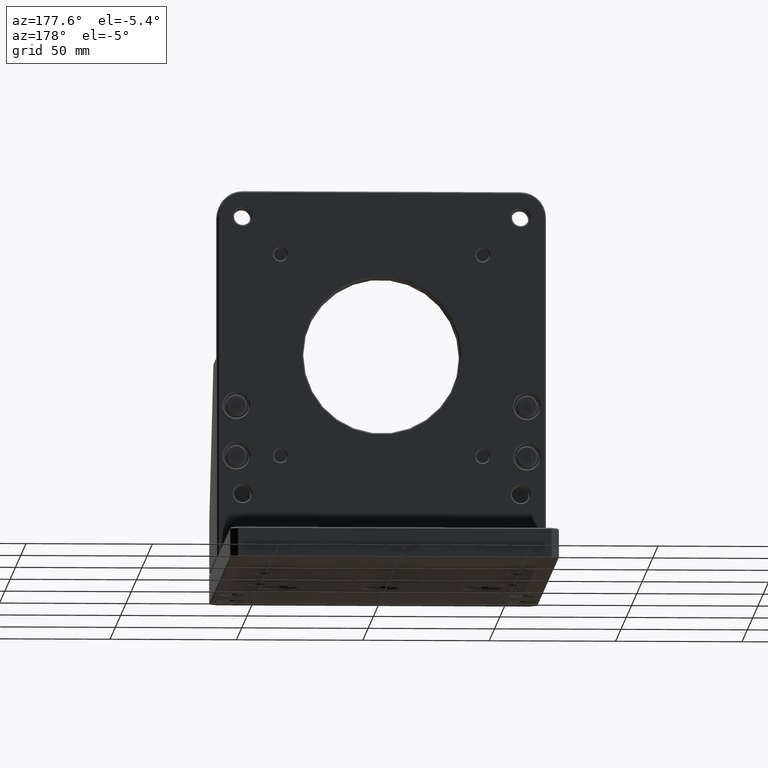
[diagram: clean part render]
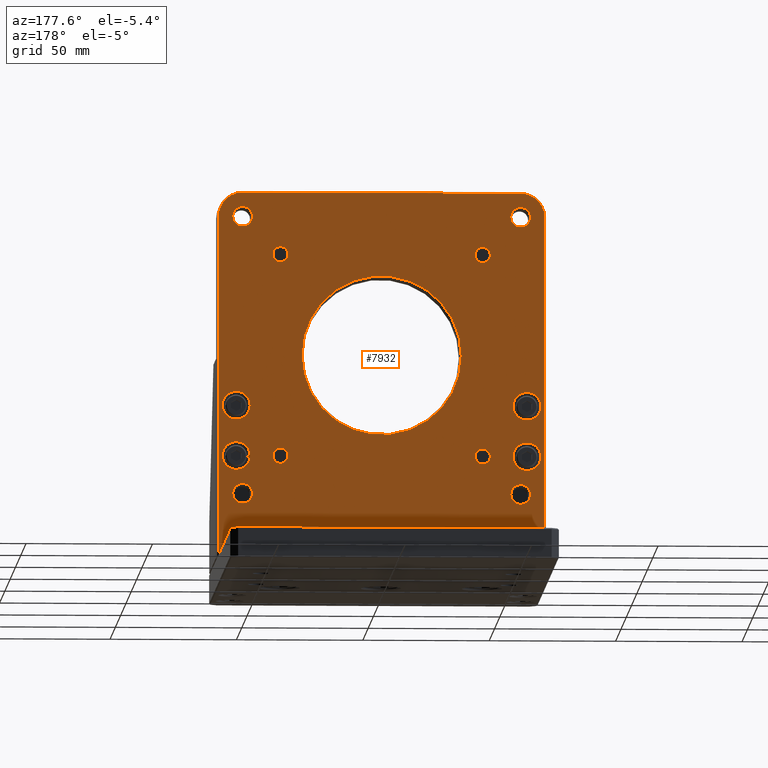
[diagram: same view with one face highlighted and labeled with its STEP entity id]
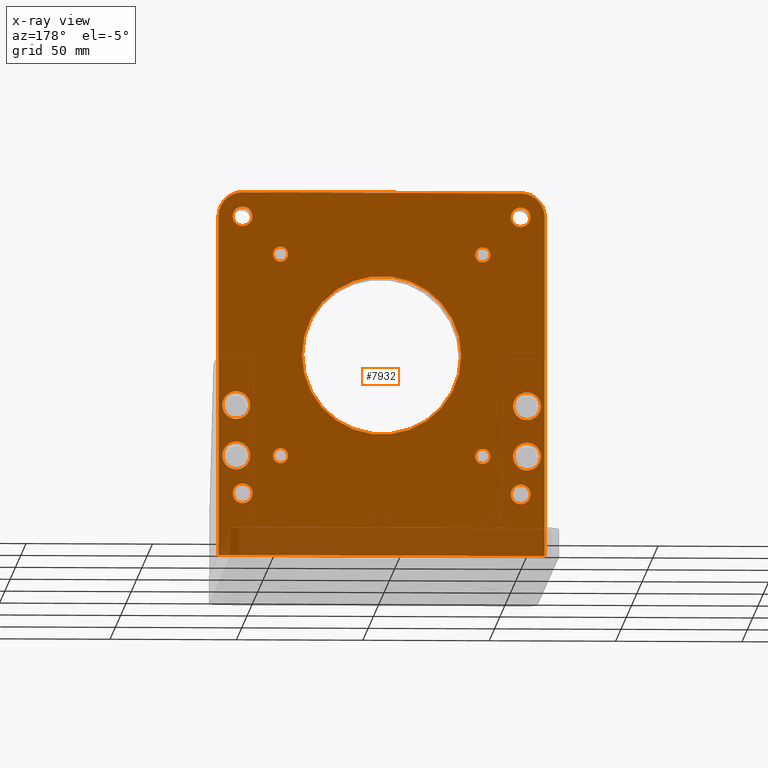
[diagram: x-ray of the same camera — body ghosted, the highlighted face saturated]
A machine part, auxiliary view. The second image highlights one B-rep face of the part: STEP entity #7932.
The next image is the same camera in x-ray: the body ghosted, the highlighted face saturated — about 10% of this face is hidden behind the body in this view.
In plain terms, the highlighted planar face has unit normal (0, -1, 0).
Its self-contained STEP definition (entity closure, byte-faithful):
#73 = CARTESIAN_POINT ( 'NONE',  ( 64.49999999999808153, -22.49999999999902656, 147.0000000000009663 ) ) ;
#112 = ORIENTED_EDGE ( 'NONE', *, *, #4727, .T. ) ;
#117 = AXIS2_PLACEMENT_3D ( 'NONE', #7075, #3770, #5889 ) ;
#195 = DIRECTION ( 'NONE',  ( 1.000000000000000000, 6.982962677686266711E-15, 1.396592535537253342E-14 ) ) ;
#214 = DIRECTION ( 'NONE',  ( 1.000000000000000000, 6.938893903907158169E-15, 1.850371707708575512E-14 ) ) ;
#282 = DIRECTION ( 'NONE',  ( 6.982962677686217801E-15, -1.000000000000000000, 3.491481338843133355E-15 ) ) ;
#303 = EDGE_CURVE ( 'NONE', #1775, #11291, #4821, .T. ) ;
#314 = EDGE_CURVE ( 'NONE', #11262, #3816, #12248, .T. ) ;
#417 = DIRECTION ( 'NONE',  ( 1.000000000000000000, 6.938893903907196034E-15, 1.513940488125206321E-14 ) ) ;
#496 = EDGE_CURVE ( 'NONE', #10457, #10890, #4851, .T. ) ;
#591 = EDGE_LOOP ( 'NONE', ( #8537, #4252 ) ) ;
#647 = EDGE_CURVE ( 'NONE', #11291, #1775, #4628, .T. ) ;
#704 = ORIENTED_EDGE ( 'NONE', *, *, #3540, .T. ) ;
#752 = AXIS2_PLACEMENT_3D ( 'NONE', #2916, #2048, #8092 ) ;
#789 = CIRCLE ( 'NONE', #8221, 3.000000000000030198 ) ;
#793 = CARTESIAN_POINT ( 'NONE',  ( -57.50000000000056133, -22.50000000000021316, 51.99999999999927525 ) ) ;
#919 = FACE_BOUND ( 'NONE', #9052, .T. ) ;
#985 = FACE_BOUND ( 'NONE', #591, .T. ) ;
#1004 = DIRECTION ( 'NONE',  ( 6.982962677686217801E-15, -1.000000000000000000, 3.491481338843133355E-15 ) ) ;
#1009 = CIRCLE ( 'NONE', #8429, 9.499999999999973355 ) ;
#1042 = CARTESIAN_POINT ( 'NONE',  ( -57.50000000000084555, -22.50000000000014566, 71.99999999999927525 ) ) ;
#1194 = AXIS2_PLACEMENT_3D ( 'NONE', #10086, #11865, #8035 ) ;
#1243 = AXIS2_PLACEMENT_3D ( 'NONE', #7020, #8022, #5017 ) ;
#1247 = DIRECTION ( 'NONE',  ( 1.000000000000000000, 6.938893903907196034E-15, 1.513940488125206321E-14 ) ) ;
#1270 = CARTESIAN_POINT ( 'NONE',  ( 39.99999999999830891, -22.49999999999925038, 132.0000000000006537 ) ) ;
#1390 = EDGE_LOOP ( 'NONE', ( #9519, #4080 ) ) ;
#1412 = CARTESIAN_POINT ( 'NONE',  ( -57.50000000000084555, -22.50000000000014566, 71.99999999999927525 ) ) ;
#1486 = DIRECTION ( 'NONE',  ( 6.982962677686217801E-15, -1.000000000000000000, 3.491481338843133355E-15 ) ) ;
#1568 = AXIS2_PLACEMENT_3D ( 'NONE', #7326, #7517, #2224 ) ;
#1674 = CARTESIAN_POINT ( 'NONE',  ( -1.499960357288447578E-14, -22.49999999999995026, 12.50000000000010836 ) ) ;
#1734 = LINE ( 'NONE', #5771, #8217 ) ;
#1775 = VERTEX_POINT ( 'NONE', #10365 ) ;
#1800 = VERTEX_POINT ( 'NONE', #11236 ) ;
#1991 = FACE_BOUND ( 'NONE', #7986, .T. ) ;
#2004 = DIRECTION ( 'NONE',  ( 6.982962677686217801E-15, -1.000000000000000000, 3.491481338843133355E-15 ) ) ;
#2040 = CARTESIAN_POINT ( 'NONE',  ( -64.49999999999998579, -22.50000000000040146, 12.49999999999920597 ) ) ;
#2048 = DIRECTION ( 'NONE',  ( 6.982962677686217801E-15, -1.000000000000000000, 3.491481338843133355E-15 ) ) ;
#2086 = EDGE_LOOP ( 'NONE', ( #2643, #12632 ) ) ;
#2093 = AXIS2_PLACEMENT_3D ( 'NONE', #793, #6827, #10750 ) ;
#2129 = FACE_BOUND ( 'NONE', #11177, .T. ) ;
#2134 = AXIS2_PLACEMENT_3D ( 'NONE', #11664, #7545, #10669 ) ;
#2170 = ORIENTED_EDGE ( 'NONE', *, *, #11747, .T. ) ;
#2187 = FACE_BOUND ( 'NONE', #11298, .T. ) ;
#2224 = DIRECTION ( 'NONE',  ( 1.000000000000000000, 6.938893903907242577E-15, 1.168655815394904071E-14 ) ) ;
#2247 = ORIENTED_EDGE ( 'NONE', *, *, #4398, .T. ) ;
#2251 = CARTESIAN_POINT ( 'NONE',  ( -58.90000000000031122, -22.50000000000027711, 36.99999999999926104 ) ) ;
#2254 = CIRCLE ( 'NONE', #6069, 5.500000000000032863 ) ;
#2321 = DIRECTION ( 'NONE',  ( 6.982962677686217801E-15, -1.000000000000000000, 3.491481338843133355E-15 ) ) ;
#2397 = VERTEX_POINT ( 'NONE', #8939 ) ;
#2408 = DIRECTION ( 'NONE',  ( 1.000000000000000000, 6.938893903907158169E-15, 1.387778780781431634E-14 ) ) ;
#2430 = CARTESIAN_POINT ( 'NONE',  ( -52.00000000000054001, -22.50000000000017764, 51.99999999999935341 ) ) ;
#2467 = EDGE_CURVE ( 'NONE', #7661, #2478, #4320, .T. ) ;
#2478 = VERTEX_POINT ( 'NONE', #8807 ) ;
#2490 = CARTESIAN_POINT ( 'NONE',  ( 39.99999999999941735, -22.49999999999953104, 52.00000000000063949 ) ) ;
#2498 = CIRCLE ( 'NONE', #8644, 5.500000000000025757 ) ;
#2507 = CIRCLE ( 'NONE', #13100, 3.000000000000030198 ) ;
#2551 = ORIENTED_EDGE ( 'NONE', *, *, #3105, .T. ) ;
#2589 = VERTEX_POINT ( 'NONE', #9069 ) ;
#2643 = ORIENTED_EDGE ( 'NONE', *, *, #3210, .T. ) ;
#2657 = AXIS2_PLACEMENT_3D ( 'NONE', #3581, #10409, #7624 ) ;
#2730 = EDGE_CURVE ( 'NONE', #8522, #8853, #2498, .T. ) ;
#2782 = ORIENTED_EDGE ( 'NONE', *, *, #11511, .T. ) ;
#2916 = CARTESIAN_POINT ( 'NONE',  ( 54.99999999999966604, -22.49999999999947775, 37.00000000000083844 ) ) ;
#2935 = AXIS2_PLACEMENT_3D ( 'NONE', #8574, #10635, #11485 ) ;
#3003 = CARTESIAN_POINT ( 'NONE',  ( -64.50000000000186162, -22.49999999999992895, 146.9999999999991473 ) ) ;
#3044 = EDGE_CURVE ( 'NONE', #1800, #11332, #789, .T. ) ;
#3105 = EDGE_CURVE ( 'NONE', #4202, #3131, #1009, .T. ) ;
#3117 = DIRECTION ( 'NONE',  ( 1.000000000000000000, 7.116814260417693756E-15, 1.423362852083538751E-14 ) ) ;
#3131 = VERTEX_POINT ( 'NONE', #3399 ) ;
#3177 = AXIS2_PLACEMENT_3D ( 'NONE', #7112, #7422, #3444 ) ;
#3189 = FACE_BOUND ( 'NONE', #3993, .T. ) ;
#3210 = EDGE_CURVE ( 'NONE', #6026, #6484, #4826, .T. ) ;
#3227 = ORIENTED_EDGE ( 'NONE', *, *, #303, .T. ) ;
#3236 = ORIENTED_EDGE ( 'NONE', *, *, #7162, .T. ) ;
#3242 = CARTESIAN_POINT ( 'NONE',  ( -1.020546229159708305E-12, -22.49999999999969802, 84.50000000000008527 ) ) ;
#3293 = CIRCLE ( 'NONE', #5192, 3.899999999999987033 ) ;
#3335 = DIRECTION ( 'NONE',  ( 6.982962677686217801E-15, -1.000000000000000000, 3.491481338843133355E-15 ) ) ;
#3362 = CIRCLE ( 'NONE', #8029, 5.500000000000032863 ) ;
#3369 = DIRECTION ( 'NONE',  ( 6.982962677686217801E-15, -1.000000000000000000, 3.491481338843133355E-15 ) ) ;
#3399 = CARTESIAN_POINT ( 'NONE',  ( -55.00000000000201794, -22.49999999999982947, 156.4999999999992895 ) ) ;
#3414 = CARTESIAN_POINT ( 'NONE',  ( 57.49999999999942446, -22.49999999999941025, 52.00000000000088818 ) ) ;
#3431 = LINE ( 'NONE', #7469, #7125 ) ;
#3444 = DIRECTION ( 'NONE',  ( 1.000000000000000000, 7.116814260417643269E-15, 1.423362852083528654E-14 ) ) ;
#3446 = EDGE_CURVE ( 'NONE', #7135, #9733, #12250, .T. ) ;
#3540 = EDGE_CURVE ( 'NONE', #4431, #5932, #7562, .T. ) ;
#3581 = CARTESIAN_POINT ( 'NONE',  ( -55.00000000000032685, -22.50000000000024869, 36.99999999999931788 ) ) ;
#3593 = DIRECTION ( 'NONE',  ( 1.000000000000000000, 6.938893903907158169E-15, 1.850371707708575512E-14 ) ) ;
#3715 = CIRCLE ( 'NONE', #11139, 5.500000000000025757 ) ;
#3719 = ORIENTED_EDGE ( 'NONE', *, *, #6405, .T. ) ;
#3770 = DIRECTION ( 'NONE',  ( 6.982962677686217801E-15, -1.000000000000000000, 3.491481338843133355E-15 ) ) ;
#3794 = DIRECTION ( 'NONE',  ( 1.000000000000000000, 6.938893903907158169E-15, 1.850371707708575512E-14 ) ) ;
#3816 = VERTEX_POINT ( 'NONE', #5487 ) ;
#3833 = DIRECTION ( 'NONE',  ( 6.982962677686217801E-15, -1.000000000000000000, 3.491481338843133355E-15 ) ) ;
#3856 = ORIENTED_EDGE ( 'NONE', *, *, #2730, .T. ) ;
#3926 = CIRCLE ( 'NONE', #12609, 3.000000000000030198 ) ;
#3968 = DIRECTION ( 'NONE',  ( 1.000000000000000000, 6.938893903907158169E-15, 1.387778780781431634E-14 ) ) ;
#3993 = EDGE_LOOP ( 'NONE', ( #8204, #9197 ) ) ;
#4037 = CARTESIAN_POINT ( 'NONE',  ( 54.99999999999813838, -22.49999999999909761, 147.0000000000008527 ) ) ;
#4046 = PLANE ( 'NONE',  #12284 ) ;
#4048 = EDGE_CURVE ( 'NONE', #8993, #10457, #1734, .T. ) ;
#4080 = ORIENTED_EDGE ( 'NONE', *, *, #10637, .T. ) ;
#4184 = VERTEX_POINT ( 'NONE', #11093 ) ;
#4202 = VERTEX_POINT ( 'NONE', #3003 ) ;
#4223 = ORIENTED_EDGE ( 'NONE', *, *, #9331, .T. ) ;
#4252 = ORIENTED_EDGE ( 'NONE', *, *, #5865, .T. ) ;
#4320 = CIRCLE ( 'NONE', #7082, 31.50000000000000000 ) ;
#4325 = EDGE_LOOP ( 'NONE', ( #2247, #5242 ) ) ;
#4363 = CARTESIAN_POINT ( 'NONE',  ( 54.99999999999966604, -22.49999999999947775, 37.00000000000083844 ) ) ;
#4398 = EDGE_CURVE ( 'NONE', #3816, #11262, #2507, .T. ) ;
#4420 = AXIS2_PLACEMENT_3D ( 'NONE', #8291, #9280, #1247 ) ;
#4431 = VERTEX_POINT ( 'NONE', #8631 ) ;
#4484 = CARTESIAN_POINT ( 'NONE',  ( 51.09999999999968168, -22.49999999999950617, 37.00000000000078160 ) ) ;
#4556 = CIRCLE ( 'NONE', #1194, 31.50000000000000000 ) ;
#4566 = EDGE_CURVE ( 'NONE', #6484, #6026, #3362, .T. ) ;
#4567 = CARTESIAN_POINT ( 'NONE',  ( -37.00000000000054712, -22.50000000000006750, 51.99999999999955946 ) ) ;
#4628 = CIRCLE ( 'NONE', #5901, 3.000000000000030198 ) ;
#4727 = EDGE_CURVE ( 'NONE', #7518, #4912, #12259, .T. ) ;
#4750 = DIRECTION ( 'NONE',  ( 1.000000000000000000, 6.938893903907228378E-15, 1.409807015397024218E-14 ) ) ;
#4817 = AXIS2_PLACEMENT_3D ( 'NONE', #2490, #5468, #7515 ) ;
#4821 = CIRCLE ( 'NONE', #11205, 3.000000000000030198 ) ;
#4826 = CIRCLE ( 'NONE', #2093, 5.500000000000032863 ) ;
#4851 = LINE ( 'NONE', #1674, #8856 ) ;
#4912 = VERTEX_POINT ( 'NONE', #7541 ) ;
#4967 = FACE_BOUND ( 'NONE', #9063, .T. ) ;
#4985 = CIRCLE ( 'NONE', #2657, 3.899999999999979927 ) ;
#5017 = DIRECTION ( 'NONE',  ( 1.000000000000000000, 7.116814260417706378E-15, 1.423362852083541276E-14 ) ) ;
#5033 = FACE_BOUND ( 'NONE', #7054, .T. ) ;
#5192 = AXIS2_PLACEMENT_3D ( 'NONE', #4363, #2321, #3117 ) ;
#5231 = DIRECTION ( 'NONE',  ( 6.982962677686217801E-15, -1.000000000000000000, 3.491481338843133355E-15 ) ) ;
#5242 = ORIENTED_EDGE ( 'NONE', *, *, #314, .T. ) ;
#5314 = EDGE_LOOP ( 'NONE', ( #3227, #11937 ) ) ;
#5468 = DIRECTION ( 'NONE',  ( 6.982962677686217801E-15, -1.000000000000000000, 3.491481338843133355E-15 ) ) ;
#5487 = CARTESIAN_POINT ( 'NONE',  ( -43.00000000000172662, -22.49999999999983302, 131.9999999999994884 ) ) ;
#5516 = CARTESIAN_POINT ( 'NONE',  ( -55.00000000000189004, -22.49999999999986500, 146.9999999999992895 ) ) ;
#5771 = CARTESIAN_POINT ( 'NONE',  ( 64.49999999999896261, -22.49999999999924682, 84.50000000000099476 ) ) ;
#5865 = EDGE_CURVE ( 'NONE', #2478, #7661, #4556, .T. ) ;
#5889 = DIRECTION ( 'NONE',  ( 1.000000000000000000, 6.938893903907186568E-15, 1.387778780781437314E-14 ) ) ;
#5901 = AXIS2_PLACEMENT_3D ( 'NONE', #5978, #2004, #10226 ) ;
#5932 = VERTEX_POINT ( 'NONE', #11145 ) ;
#5938 = CARTESIAN_POINT ( 'NONE',  ( 51.99999999999913314, -22.49999999999937828, 72.00000000000079581 ) ) ;
#5965 = EDGE_CURVE ( 'NONE', #7522, #8375, #3293, .T. ) ;
#5973 = FACE_BOUND ( 'NONE', #4325, .T. ) ;
#5978 = CARTESIAN_POINT ( 'NONE',  ( -40.00000000000057554, -22.50000000000008882, 51.99999999999951683 ) ) ;
#6026 = VERTEX_POINT ( 'NONE', #12205 ) ;
#6045 = ORIENTED_EDGE ( 'NONE', *, *, #8218, .T. ) ;
#6065 = VERTEX_POINT ( 'NONE', #2251 ) ;
#6069 = AXIS2_PLACEMENT_3D ( 'NONE', #3414, #282, #12497 ) ;
#6187 = EDGE_LOOP ( 'NONE', ( #10663, #11179, #2170, #2551, #4223, #7345 ) ) ;
#6203 = ORIENTED_EDGE ( 'NONE', *, *, #8066, .T. ) ;
#6242 = EDGE_CURVE ( 'NONE', #2397, #4184, #13050, .T. ) ;
#6354 = VERTEX_POINT ( 'NONE', #11322 ) ;
#6385 = CARTESIAN_POINT ( 'NONE',  ( -40.00000000000057554, -22.50000000000008882, 51.99999999999951683 ) ) ;
#6405 = EDGE_CURVE ( 'NONE', #8853, #8522, #3715, .T. ) ;
#6484 = VERTEX_POINT ( 'NONE', #2430 ) ;
#6547 = AXIS2_PLACEMENT_3D ( 'NONE', #11985, #12263, #3968 ) ;
#6638 = DIRECTION ( 'NONE',  ( 1.000000000000000000, 6.982962677686266711E-15, 1.396592535537253342E-14 ) ) ;
#6652 = CIRCLE ( 'NONE', #1568, 9.499999999999980460 ) ;
#6827 = DIRECTION ( 'NONE',  ( 6.982962677686217801E-15, -1.000000000000000000, 3.491481338843133355E-15 ) ) ;
#6848 = ORIENTED_EDGE ( 'NONE', *, *, #8803, .T. ) ;
#6860 = CARTESIAN_POINT ( 'NONE',  ( 58.89999999999965041, -22.49999999999944933, 37.00000000000089528 ) ) ;
#6884 = VERTEX_POINT ( 'NONE', #7386 ) ;
#6923 = VECTOR ( 'NONE', #6638, 1000.000000000000000 ) ;
#7020 = CARTESIAN_POINT ( 'NONE',  ( -55.00000000000032685, -22.50000000000024869, 36.99999999999931788 ) ) ;
#7054 = EDGE_LOOP ( 'NONE', ( #7596, #6848 ) ) ;
#7075 = CARTESIAN_POINT ( 'NONE',  ( 57.49999999999942446, -22.49999999999941025, 52.00000000000088818 ) ) ;
#7080 = DIRECTION ( 'NONE',  ( 6.982962677686217801E-15, -1.000000000000000000, 3.491481338843133355E-15 ) ) ;
#7082 = AXIS2_PLACEMENT_3D ( 'NONE', #10667, #3833, #4750 ) ;
#7112 = CARTESIAN_POINT ( 'NONE',  ( -55.00000000000186162, -22.49999999999986500, 146.9999999999993179 ) ) ;
#7125 = VECTOR ( 'NONE', #11513, 1000.000000000000000 ) ;
#7135 = VERTEX_POINT ( 'NONE', #7482 ) ;
#7162 = EDGE_CURVE ( 'NONE', #5932, #4431, #11646, .T. ) ;
#7229 = FACE_BOUND ( 'NONE', #5314, .T. ) ;
#7326 = CARTESIAN_POINT ( 'NONE',  ( 54.99999999999810285, -22.49999999999909761, 147.0000000000008242 ) ) ;
#7345 = ORIENTED_EDGE ( 'NONE', *, *, #12117, .T. ) ;
#7355 = CARTESIAN_POINT ( 'NONE',  ( -37.00000000000166267, -22.49999999999979039, 131.9999999999996021 ) ) ;
#7359 = EDGE_LOOP ( 'NONE', ( #112, #7788 ) ) ;
#7386 = CARTESIAN_POINT ( 'NONE',  ( 42.99999999999944578, -22.49999999999950973, 52.00000000000067502 ) ) ;
#7422 = DIRECTION ( 'NONE',  ( 6.982962677686217801E-15, -1.000000000000000000, 3.491481338843133355E-15 ) ) ;
#7469 = CARTESIAN_POINT ( 'NONE',  ( -64.50000000000098055, -22.50000000000014921, 84.49999999999918998 ) ) ;
#7482 = CARTESIAN_POINT ( 'NONE',  ( 51.09999999999812559, -22.49999999999912603, 147.0000000000007958 ) ) ;
#7484 = CARTESIAN_POINT ( 'NONE',  ( 42.99999999999833733, -22.49999999999922906, 132.0000000000007105 ) ) ;
#7515 = DIRECTION ( 'NONE',  ( 1.000000000000000000, 6.938893903907158169E-15, 1.387778780781431634E-14 ) ) ;
#7517 = DIRECTION ( 'NONE',  ( -6.982962677686217801E-15, 1.000000000000000000, -3.491481338843133355E-15 ) ) ;
#7518 = VERTEX_POINT ( 'NONE', #5938 ) ;
#7522 = VERTEX_POINT ( 'NONE', #6860 ) ;
#7541 = CARTESIAN_POINT ( 'NONE',  ( 62.99999999999918288, -22.49999999999930012, 72.00000000000095213 ) ) ;
#7545 = DIRECTION ( 'NONE',  ( 6.982962677686217801E-15, -1.000000000000000000, 3.491481338843133355E-15 ) ) ;
#7562 = CIRCLE ( 'NONE', #8409, 3.900000000000014566 ) ;
#7596 = ORIENTED_EDGE ( 'NONE', *, *, #6242, .T. ) ;
#7624 = DIRECTION ( 'NONE',  ( 1.000000000000000000, 7.116814260417706378E-15, 1.423362852083541276E-14 ) ) ;
#7641 = LINE ( 'NONE', #10753, #6923 ) ;
#7661 = VERTEX_POINT ( 'NONE', #12494 ) ;
#7788 = ORIENTED_EDGE ( 'NONE', *, *, #12973, .T. ) ;
#7813 = DIRECTION ( 'NONE',  ( 1.000000000000000000, 7.116814260417643269E-15, 1.423362852083528654E-14 ) ) ;
#7932 = ADVANCED_FACE ( 'NONE', ( #13140, #4967, #985, #12206, #919, #1991, #3189, #5973, #2129, #7229, #11278, #2187, #5033, #12139 ), #4046, .F. ) ;
#7986 = EDGE_LOOP ( 'NONE', ( #11561, #6203 ) ) ;
#8022 = DIRECTION ( 'NONE',  ( 6.982962677686217801E-15, -1.000000000000000000, 3.491481338843133355E-15 ) ) ;
#8025 = AXIS2_PLACEMENT_3D ( 'NONE', #4037, #13061, #8887 ) ;
#8029 = AXIS2_PLACEMENT_3D ( 'NONE', #11018, #8895, #10017 ) ;
#8035 = DIRECTION ( 'NONE',  ( 1.000000000000000000, 6.938893903907228378E-15, 1.409807015397024218E-14 ) ) ;
#8066 = EDGE_CURVE ( 'NONE', #6354, #6065, #4985, .T. ) ;
#8092 = DIRECTION ( 'NONE',  ( 1.000000000000000000, 7.116814260417693756E-15, 1.423362852083538751E-14 ) ) ;
#8204 = ORIENTED_EDGE ( 'NONE', *, *, #3446, .T. ) ;
#8217 = VECTOR ( 'NONE', #11744, 1000.000000000000000 ) ;
#8218 = EDGE_CURVE ( 'NONE', #6884, #9738, #13112, .T. ) ;
#8221 = AXIS2_PLACEMENT_3D ( 'NONE', #1270, #1004, #214 ) ;
#8234 = EDGE_CURVE ( 'NONE', #6065, #6354, #11824, .T. ) ;
#8291 = CARTESIAN_POINT ( 'NONE',  ( 57.49999999999915445, -22.49999999999933920, 72.00000000000088107 ) ) ;
#8375 = VERTEX_POINT ( 'NONE', #4484 ) ;
#8409 = AXIS2_PLACEMENT_3D ( 'NONE', #11920, #7080, #7813 ) ;
#8429 = AXIS2_PLACEMENT_3D ( 'NONE', #5516, #9561, #8562 ) ;
#8447 = ORIENTED_EDGE ( 'NONE', *, *, #5965, .T. ) ;
#8475 = DIRECTION ( 'NONE',  ( 1.000000000000000000, 7.116814260417643269E-15, 1.423362852083528654E-14 ) ) ;
#8522 = VERTEX_POINT ( 'NONE', #8790 ) ;
#8537 = ORIENTED_EDGE ( 'NONE', *, *, #2467, .T. ) ;
#8562 = DIRECTION ( 'NONE',  ( 1.000000000000000000, 6.938893903907248099E-15, 1.460819769243630996E-14 ) ) ;
#8574 = CARTESIAN_POINT ( 'NONE',  ( -40.00000000000169109, -22.49999999999981171, 131.9999999999995453 ) ) ;
#8628 = AXIS2_PLACEMENT_3D ( 'NONE', #12647, #3369, #8475 ) ;
#8631 = CARTESIAN_POINT ( 'NONE',  ( -51.10000000000184883, -22.49999999999983658, 146.9999999999993747 ) ) ;
#8644 = AXIS2_PLACEMENT_3D ( 'NONE', #1412, #1486, #417 ) ;
#8659 = CARTESIAN_POINT ( 'NONE',  ( -52.00000000000082423, -22.50000000000010658, 71.99999999999936051 ) ) ;
#8764 = DIRECTION ( 'NONE',  ( -1.000000000000000000, -6.982962677686266711E-15, -1.396592535537253342E-14 ) ) ;
#8790 = CARTESIAN_POINT ( 'NONE',  ( -63.00000000000088818, -22.50000000000018474, 71.99999999999920419 ) ) ;
#8803 = EDGE_CURVE ( 'NONE', #4184, #2397, #2254, .T. ) ;
#8807 = CARTESIAN_POINT ( 'NONE',  ( 31.49999999999887734, -22.49999999999945288, 92.00000000000052580 ) ) ;
#8853 = VERTEX_POINT ( 'NONE', #8659 ) ;
#8856 = VECTOR ( 'NONE', #8764, 1000.000000000000000 ) ;
#8887 = DIRECTION ( 'NONE',  ( 1.000000000000000000, 7.116814260417643269E-15, 1.423362852083528654E-14 ) ) ;
#8895 = DIRECTION ( 'NONE',  ( 6.982962677686217801E-15, -1.000000000000000000, 3.491481338843133355E-15 ) ) ;
#8910 = CIRCLE ( 'NONE', #2134, 5.500000000000025757 ) ;
#8939 = CARTESIAN_POINT ( 'NONE',  ( 51.99999999999939604, -22.49999999999944578, 52.00000000000081002 ) ) ;
#8993 = VERTEX_POINT ( 'NONE', #73 ) ;
#9052 = EDGE_LOOP ( 'NONE', ( #2782, #8447 ) ) ;
#9063 = EDGE_LOOP ( 'NONE', ( #3236, #704 ) ) ;
#9069 = CARTESIAN_POINT ( 'NONE',  ( 54.99999999999797495, -22.49999999999906208, 156.5000000000007958 ) ) ;
#9194 = DIRECTION ( 'NONE',  ( 1.000000000000000000, 6.938893903907196034E-15, 1.513940488125206321E-14 ) ) ;
#9197 = ORIENTED_EDGE ( 'NONE', *, *, #9529, .T. ) ;
#9280 = DIRECTION ( 'NONE',  ( 6.982962677686217801E-15, -1.000000000000000000, 3.491481338843133355E-15 ) ) ;
#9331 = EDGE_CURVE ( 'NONE', #3131, #2589, #7641, .T. ) ;
#9333 = DIRECTION ( 'NONE',  ( 6.982962677686217801E-15, -1.000000000000000000, 3.491481338843133355E-15 ) ) ;
#9519 = ORIENTED_EDGE ( 'NONE', *, *, #3044, .T. ) ;
#9529 = EDGE_CURVE ( 'NONE', #9733, #7135, #10118, .T. ) ;
#9561 = DIRECTION ( 'NONE',  ( -6.982962677686217801E-15, 1.000000000000000000, -3.491481338843133355E-15 ) ) ;
#9586 = ORIENTED_EDGE ( 'NONE', *, *, #9897, .T. ) ;
#9733 = VERTEX_POINT ( 'NONE', #11708 ) ;
#9738 = VERTEX_POINT ( 'NONE', #11972 ) ;
#9897 = EDGE_CURVE ( 'NONE', #9738, #6884, #10548, .T. ) ;
#10017 = DIRECTION ( 'NONE',  ( 1.000000000000000000, 6.938893903907186568E-15, 1.387778780781437314E-14 ) ) ;
#10086 = CARTESIAN_POINT ( 'NONE',  ( -1.124678345925428933E-12, -22.49999999999967315, 92.00000000000008527 ) ) ;
#10118 = CIRCLE ( 'NONE', #8628, 3.900000000000014566 ) ;
#10226 = DIRECTION ( 'NONE',  ( 1.000000000000000000, 6.938893903907158169E-15, 1.387778780781431634E-14 ) ) ;
#10365 = CARTESIAN_POINT ( 'NONE',  ( -43.00000000000060396, -22.50000000000011013, 51.99999999999947420 ) ) ;
#10409 = DIRECTION ( 'NONE',  ( 6.982962677686217801E-15, -1.000000000000000000, 3.491481338843133355E-15 ) ) ;
#10457 = VERTEX_POINT ( 'NONE', #11549 ) ;
#10506 = CIRCLE ( 'NONE', #752, 3.899999999999987033 ) ;
#10548 = CIRCLE ( 'NONE', #4817, 3.000000000000030198 ) ;
#10556 = CARTESIAN_POINT ( 'NONE',  ( -40.00000000000169109, -22.49999999999981171, 131.9999999999995453 ) ) ;
#10635 = DIRECTION ( 'NONE',  ( 6.982962677686217801E-15, -1.000000000000000000, 3.491481338843133355E-15 ) ) ;
#10637 = EDGE_CURVE ( 'NONE', #11332, #1800, #3926, .T. ) ;
#10663 = ORIENTED_EDGE ( 'NONE', *, *, #4048, .T. ) ;
#10667 = CARTESIAN_POINT ( 'NONE',  ( -1.124678345925428933E-12, -22.49999999999967315, 92.00000000000008527 ) ) ;
#10669 = DIRECTION ( 'NONE',  ( 1.000000000000000000, 6.938893903907196034E-15, 1.513940488125206321E-14 ) ) ;
#10750 = DIRECTION ( 'NONE',  ( 1.000000000000000000, 6.938893903907186568E-15, 1.387778780781437314E-14 ) ) ;
#10753 = CARTESIAN_POINT ( 'NONE',  ( -2.026092854746531923E-12, -22.49999999999944578, 156.5000000000000284 ) ) ;
#10890 = VERTEX_POINT ( 'NONE', #2040 ) ;
#11018 = CARTESIAN_POINT ( 'NONE',  ( -57.50000000000056133, -22.50000000000021316, 51.99999999999927525 ) ) ;
#11093 = CARTESIAN_POINT ( 'NONE',  ( 62.99999999999944578, -22.49999999999937117, 52.00000000000095923 ) ) ;
#11139 = AXIS2_PLACEMENT_3D ( 'NONE', #1042, #9333, #9194 ) ;
#11145 = CARTESIAN_POINT ( 'NONE',  ( -58.90000000000187441, -22.49999999999988987, 146.9999999999992610 ) ) ;
#11177 = EDGE_LOOP ( 'NONE', ( #9586, #6045 ) ) ;
#11179 = ORIENTED_EDGE ( 'NONE', *, *, #496, .T. ) ;
#11205 = AXIS2_PLACEMENT_3D ( 'NONE', #6385, #3335, #2408 ) ;
#11236 = CARTESIAN_POINT ( 'NONE',  ( 36.99999999999828049, -22.49999999999927169, 132.0000000000005969 ) ) ;
#11262 = VERTEX_POINT ( 'NONE', #7355 ) ;
#11278 = FACE_BOUND ( 'NONE', #1390, .T. ) ;
#11291 = VERTEX_POINT ( 'NONE', #4567 ) ;
#11298 = EDGE_LOOP ( 'NONE', ( #3856, #3719 ) ) ;
#11322 = CARTESIAN_POINT ( 'NONE',  ( -51.10000000000034959, -22.50000000000022027, 36.99999999999937472 ) ) ;
#11332 = VERTEX_POINT ( 'NONE', #7484 ) ;
#11485 = DIRECTION ( 'NONE',  ( 1.000000000000000000, 6.938893903907158169E-15, 1.850371707708575512E-14 ) ) ;
#11511 = EDGE_CURVE ( 'NONE', #8375, #7522, #10506, .T. ) ;
#11513 = DIRECTION ( 'NONE',  ( -1.396592535537255866E-14, 3.491481338843035537E-15, 1.000000000000000000 ) ) ;
#11549 = CARTESIAN_POINT ( 'NONE',  ( 64.49999999999995737, -22.49999999999949907, 12.50000000000101075 ) ) ;
#11561 = ORIENTED_EDGE ( 'NONE', *, *, #8234, .T. ) ;
#11646 = CIRCLE ( 'NONE', #3177, 3.900000000000014566 ) ;
#11664 = CARTESIAN_POINT ( 'NONE',  ( 57.49999999999915445, -22.49999999999933920, 72.00000000000088107 ) ) ;
#11708 = CARTESIAN_POINT ( 'NONE',  ( 58.89999999999815117, -22.49999999999906919, 147.0000000000009095 ) ) ;
#11732 = DIRECTION ( 'NONE',  ( 6.982962677686217801E-15, -1.000000000000000000, 3.491481338843133355E-15 ) ) ;
#11739 = DIRECTION ( 'NONE',  ( 6.982962677686217801E-15, -1.000000000000000000, 3.491481338843133355E-15 ) ) ;
#11744 = DIRECTION ( 'NONE',  ( 1.396592535537255866E-14, -3.491481338843035537E-15, -1.000000000000000000 ) ) ;
#11747 = EDGE_CURVE ( 'NONE', #10890, #4202, #3431, .T. ) ;
#11824 = CIRCLE ( 'NONE', #1243, 3.899999999999979927 ) ;
#11865 = DIRECTION ( 'NONE',  ( 6.982962677686217801E-15, -1.000000000000000000, 3.491481338843133355E-15 ) ) ;
#11920 = CARTESIAN_POINT ( 'NONE',  ( -55.00000000000186162, -22.49999999999986500, 146.9999999999993179 ) ) ;
#11937 = ORIENTED_EDGE ( 'NONE', *, *, #647, .T. ) ;
#11972 = CARTESIAN_POINT ( 'NONE',  ( 36.99999999999938893, -22.49999999999955236, 52.00000000000059686 ) ) ;
#11985 = CARTESIAN_POINT ( 'NONE',  ( 39.99999999999941735, -22.49999999999953104, 52.00000000000063949 ) ) ;
#12117 = EDGE_CURVE ( 'NONE', #2589, #8993, #6652, .T. ) ;
#12139 = FACE_BOUND ( 'NONE', #7359, .T. ) ;
#12205 = CARTESIAN_POINT ( 'NONE',  ( -63.00000000000059686, -22.50000000000025224, 51.99999999999919709 ) ) ;
#12206 = FACE_OUTER_BOUND ( 'NONE', #6187, .T. ) ;
#12248 = CIRCLE ( 'NONE', #2935, 3.000000000000030198 ) ;
#12250 = CIRCLE ( 'NONE', #8025, 3.900000000000014566 ) ;
#12259 = CIRCLE ( 'NONE', #4420, 5.500000000000025757 ) ;
#12263 = DIRECTION ( 'NONE',  ( 6.982962677686217801E-15, -1.000000000000000000, 3.491481338843133355E-15 ) ) ;
#12284 = AXIS2_PLACEMENT_3D ( 'NONE', #3242, #5231, #195 ) ;
#12494 = CARTESIAN_POINT ( 'NONE',  ( -31.50000000000111910, -22.49999999999988987, 91.99999999999964473 ) ) ;
#12497 = DIRECTION ( 'NONE',  ( 1.000000000000000000, 6.938893903907186568E-15, 1.387778780781437314E-14 ) ) ;
#12609 = AXIS2_PLACEMENT_3D ( 'NONE', #12805, #11739, #3794 ) ;
#12632 = ORIENTED_EDGE ( 'NONE', *, *, #4566, .T. ) ;
#12647 = CARTESIAN_POINT ( 'NONE',  ( 54.99999999999813838, -22.49999999999909761, 147.0000000000008527 ) ) ;
#12805 = CARTESIAN_POINT ( 'NONE',  ( 39.99999999999830891, -22.49999999999925038, 132.0000000000006537 ) ) ;
#12973 = EDGE_CURVE ( 'NONE', #4912, #7518, #8910, .T. ) ;
#13050 = CIRCLE ( 'NONE', #117, 5.500000000000032863 ) ;
#13061 = DIRECTION ( 'NONE',  ( 6.982962677686217801E-15, -1.000000000000000000, 3.491481338843133355E-15 ) ) ;
#13100 = AXIS2_PLACEMENT_3D ( 'NONE', #10556, #11732, #3593 ) ;
#13112 = CIRCLE ( 'NONE', #6547, 3.000000000000030198 ) ;
#13140 = FACE_BOUND ( 'NONE', #2086, .T. ) ;